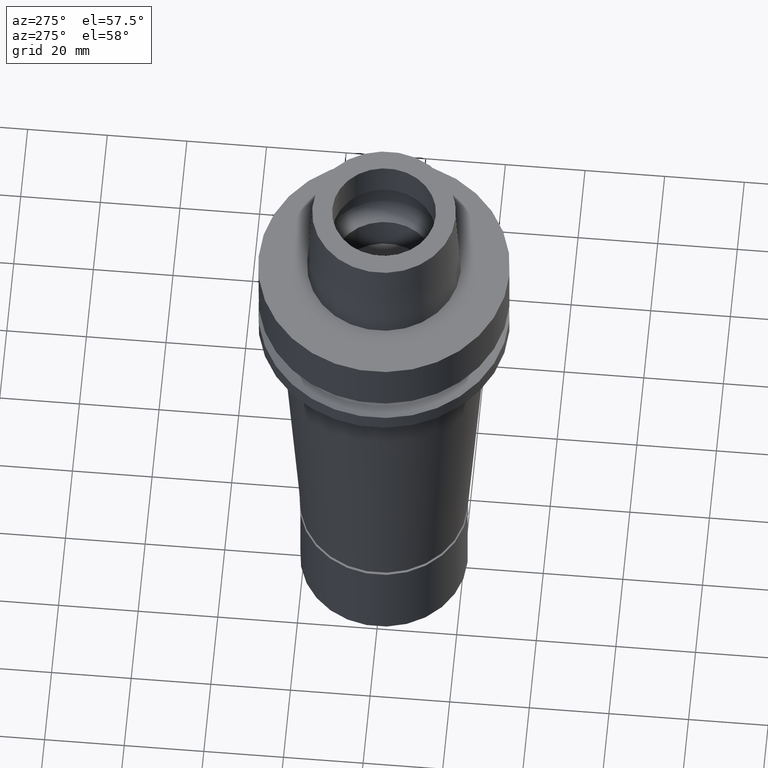
[diagram: clean part render]
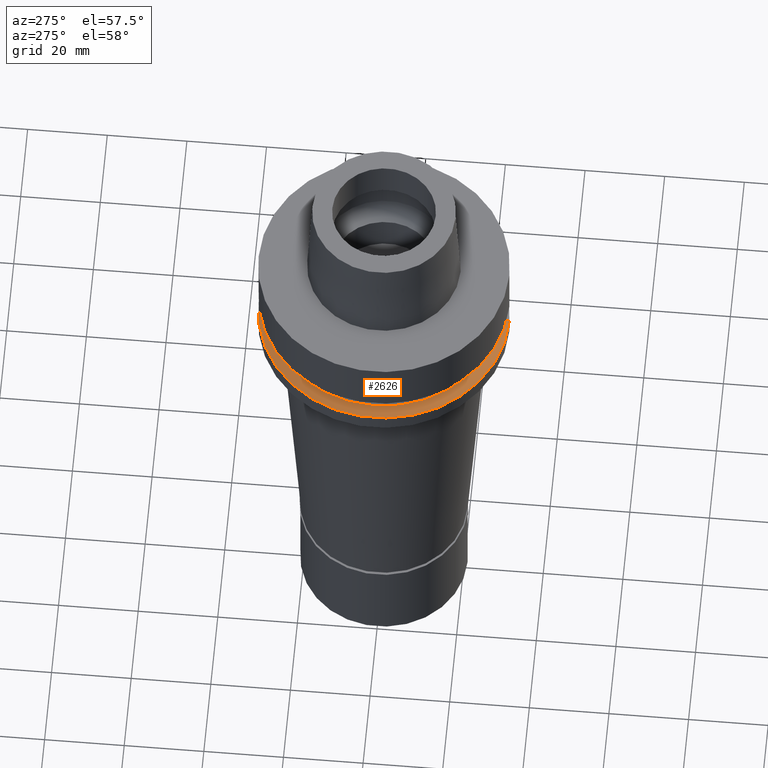
[diagram: same view with one face highlighted and labeled with its STEP entity id]
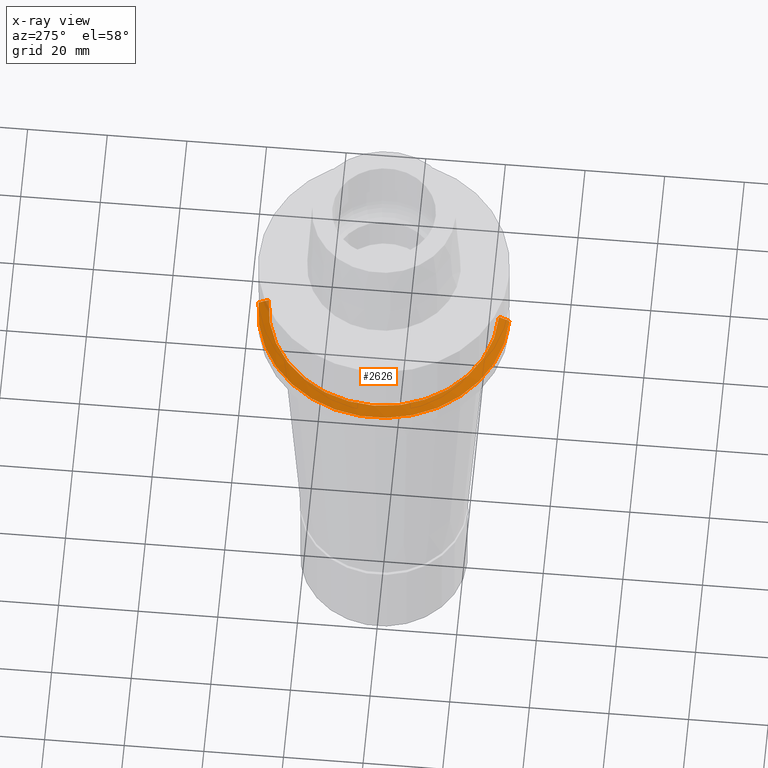
[diagram: x-ray of the same camera — body ghosted, the highlighted face saturated]
A machine part, auxiliary view. The second image highlights one B-rep face of the part: STEP entity #2626.
The next image is the same camera in x-ray: the body ghosted, the highlighted face saturated — about 1% of this face is hidden behind the body in this view.
In plain terms, the highlighted conical surface has half-angle 60 deg.
Its self-contained STEP definition (entity closure, byte-faithful):
#27 = EDGE_CURVE ( 'NONE', #2514, #2235, #2791, .T. ) ;
#78 = CARTESIAN_POINT ( 'NONE',  ( 0.0000000000000000000, -28.89759526419000224, -19.87500000000000000 ) ) ;
#148 = DIRECTION ( 'NONE',  ( 0.0000000000000000000, -1.000000000000000000, 0.0000000000000000000 ) ) ;
#280 = CIRCLE ( 'NONE', #2338, 31.50000000000000000 ) ;
#392 = ORIENTED_EDGE ( 'NONE', *, *, #826, .F. ) ;
#432 = CARTESIAN_POINT ( 'NONE',  ( 0.0000000000000000000, 28.89759526419000224, -19.87500000000000000 ) ) ;
#604 = CARTESIAN_POINT ( 'NONE',  ( 0.0000000000000000000, -28.89759526419000224, -19.87500000000000000 ) ) ;
#615 = VECTOR ( 'NONE', #1639, 1000.000000000000000 ) ;
#676 = ORIENTED_EDGE ( 'NONE', *, *, #27, .T. ) ;
#717 = CARTESIAN_POINT ( 'NONE',  ( 0.0000000000000000000, -31.50000000000000000, -21.37749907476000288 ) ) ;
#734 = DIRECTION ( 'NONE',  ( 0.0000000000000000000, 0.0000000000000000000, -1.000000000000000000 ) ) ;
#803 = CARTESIAN_POINT ( 'NONE',  ( 0.0000000000000000000, 28.89759526419000224, -19.87500000000000000 ) ) ;
#826 = EDGE_CURVE ( 'NONE', #1499, #1218, #2721, .T. ) ;
#865 = AXIS2_PLACEMENT_3D ( 'NONE', #949, #1380, #2242 ) ;
#949 = CARTESIAN_POINT ( 'NONE',  ( 0.0000000000000000000, 0.0000000000000000000, -20.62624953738000144 ) ) ;
#964 = CARTESIAN_POINT ( 'NONE',  ( 0.0000000000000000000, 31.50000000000000000, -21.37749907476000288 ) ) ;
#1009 = ORIENTED_EDGE ( 'NONE', *, *, #1272, .T. ) ;
#1079 = CARTESIAN_POINT ( 'NONE',  ( 0.0000000000000000000, 0.0000000000000000000, -21.37749907476000288 ) ) ;
#1218 = VERTEX_POINT ( 'NONE', #717 ) ;
#1272 = EDGE_CURVE ( 'NONE', #1499, #2514, #1386, .T. ) ;
#1380 = DIRECTION ( 'NONE',  ( 0.0000000000000000000, 0.0000000000000000000, -1.000000000000000000 ) ) ;
#1386 = CIRCLE ( 'NONE', #2119, 28.89759526419000224 ) ;
#1499 = VERTEX_POINT ( 'NONE', #604 ) ;
#1639 = DIRECTION ( 'NONE',  ( 0.0000000000000000000, -0.8660254037843856390, -0.5000000000000918154 ) ) ;
#1687 = DIRECTION ( 'NONE',  ( 0.0000000000000000000, 0.8660254037843856390, -0.5000000000000918154 ) ) ;
#1810 = EDGE_LOOP ( 'NONE', ( #1946, #392, #1009, #676 ) ) ;
#1866 = CARTESIAN_POINT ( 'NONE',  ( 0.0000000000000000000, 0.0000000000000000000, -19.87500000000000000 ) ) ;
#1946 = ORIENTED_EDGE ( 'NONE', *, *, #2406, .F. ) ;
#1994 = VECTOR ( 'NONE', #1687, 1000.000000000000000 ) ;
#2119 = AXIS2_PLACEMENT_3D ( 'NONE', #1866, #734, #2715 ) ;
#2235 = VERTEX_POINT ( 'NONE', #964 ) ;
#2242 = DIRECTION ( 'NONE',  ( 0.0000000000000000000, -1.000000000000000000, 0.0000000000000000000 ) ) ;
#2338 = AXIS2_PLACEMENT_3D ( 'NONE', #1079, #2386, #148 ) ;
#2386 = DIRECTION ( 'NONE',  ( 0.0000000000000000000, 0.0000000000000000000, -1.000000000000000000 ) ) ;
#2406 = EDGE_CURVE ( 'NONE', #1218, #2235, #280, .T. ) ;
#2467 = FACE_OUTER_BOUND ( 'NONE', #1810, .T. ) ;
#2486 = CONICAL_SURFACE ( 'NONE', #865, 30.19879763209999979, 1.047197551196400456 ) ;
#2514 = VERTEX_POINT ( 'NONE', #432 ) ;
#2626 = ADVANCED_FACE ( 'NONE', ( #2467 ), #2486, .T. ) ;
#2715 = DIRECTION ( 'NONE',  ( 0.0000000000000000000, -1.000000000000000000, 0.0000000000000000000 ) ) ;
#2721 = LINE ( 'NONE', #78, #615 ) ;
#2791 = LINE ( 'NONE', #803, #1994 ) ;